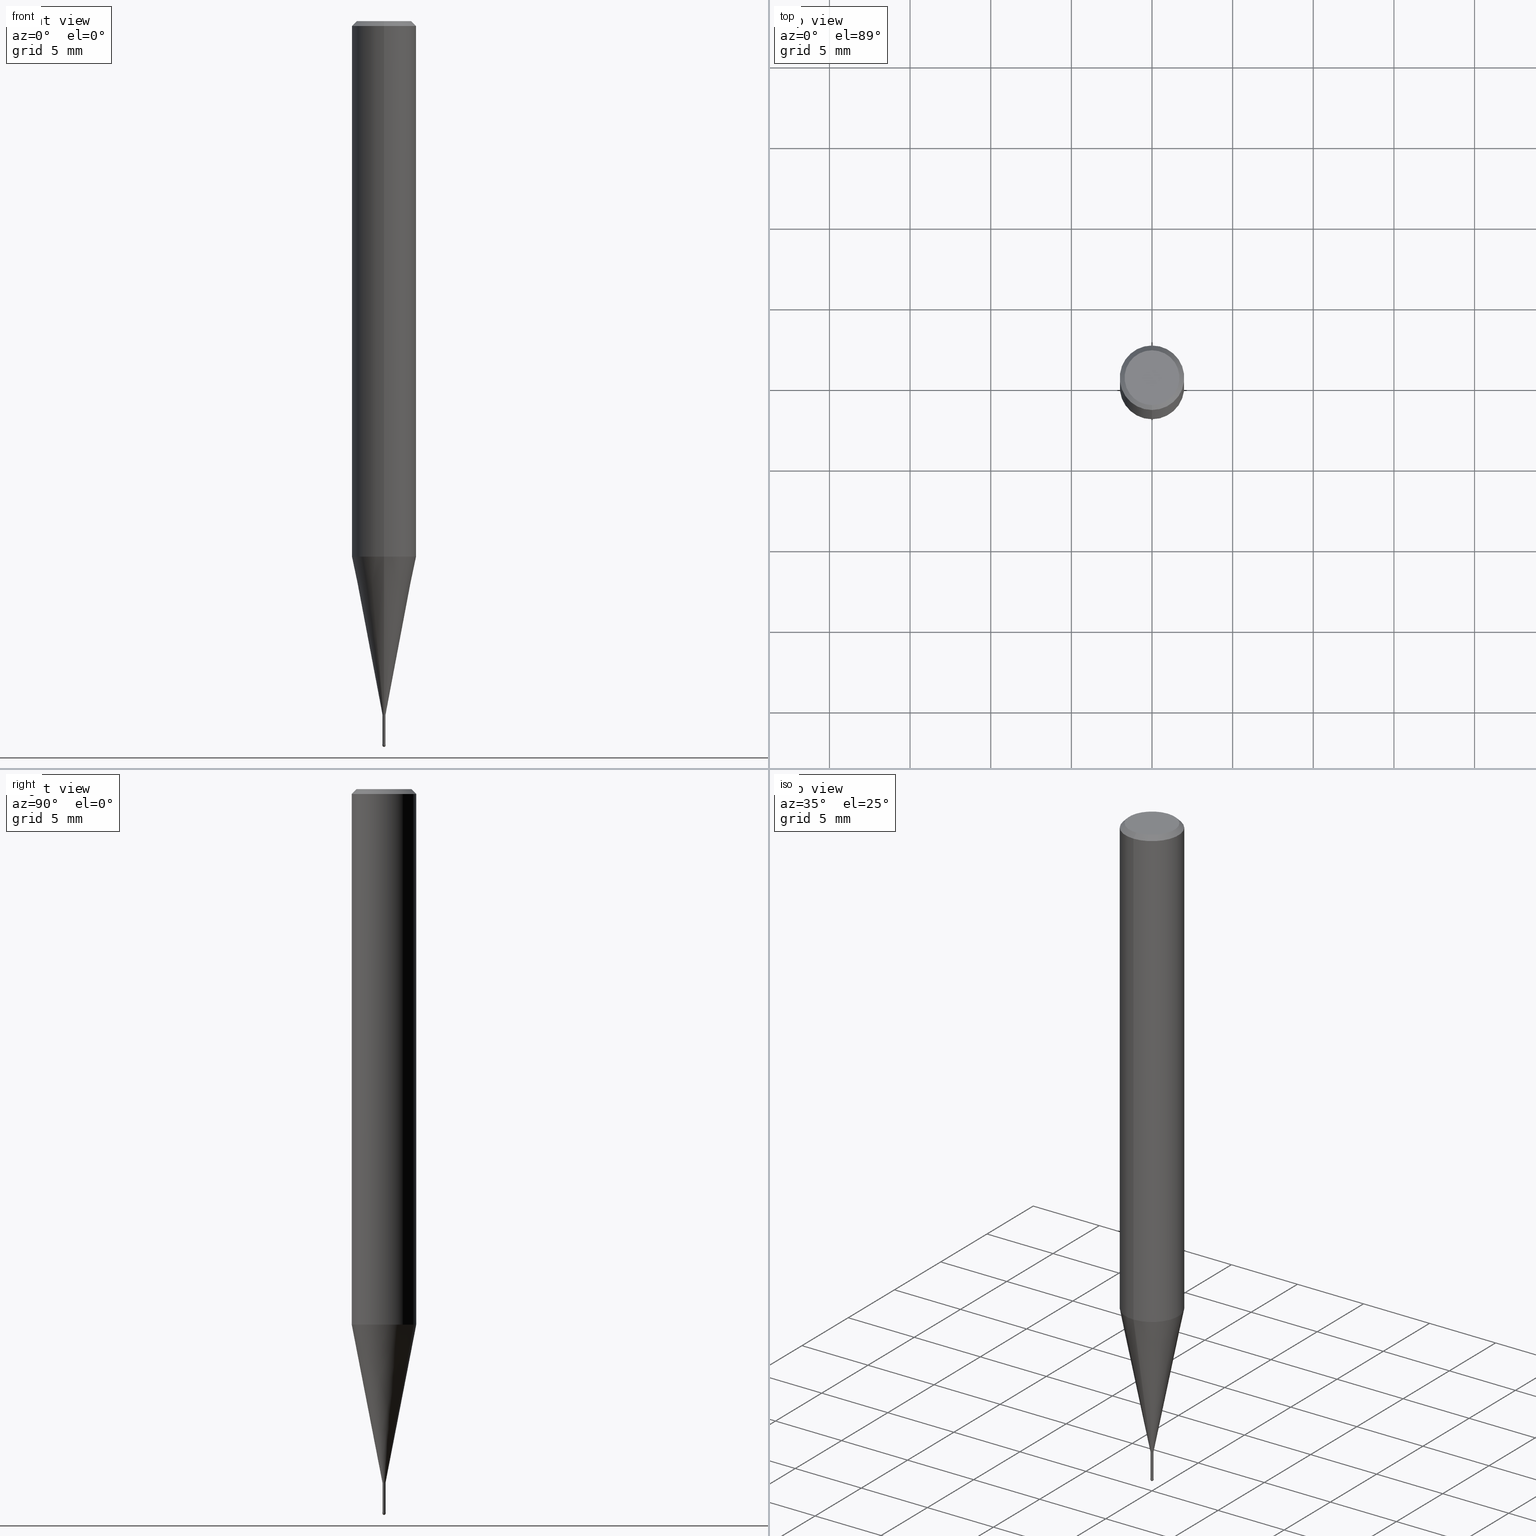
[diagram: canonical four-view strip — front | top / right | iso, engineering-drawing reading convention]
A machine part, canonical four-view strip (front | top / right | iso — engineering-drawing reading convention). The complete STEP part file that produces these views, byte-faithful:
ISO-10303-21;
HEADER;
FILE_DESCRIPTION(('no description'),'unknown implementation level');
FILE_NAME('CSELB2002-020-Huellk.stp','  ',('CIMSOURCE GmbH'),('CADClick - KiM GmbH - www.kimweb.de'),'unknown preprocess','ACIS','unknown authorization');
FILE_SCHEMA(('automotive_design'));
ENDSEC;
DATA;
#1=MECHANICAL_DESIGN_GEOMETRIC_PRESENTATION_REPRESENTATION(' ',(#14,#15,#16,#17,#18,#19,#20,#21,#22,#23,#24,#25,#26,#27,#28,#29,#30,#31,#32,#33,#34,#35,#36,#37,#38,#39,#40,#41,#42,#43,#44,#45,#46,#47,#48,#49,#50,#51,#52,#53,#54,#55,#56,#57,#58,#59,#60,#61,#62,#63,#64,#65,#66,#67,#68,#69,#70,#71,#72,#73,#74),#10);
#2=PRODUCT_DEFINITION_CONTEXT('',#75,'design');
#3=APPLICATION_PROTOCOL_DEFINITION('INTERNATIONAL STANDARD','automotive_design',1994,#75);
#4=PRODUCT_CATEGORY_RELATIONSHIP('NONE','NONE',#76,#77);
#5=SHAPE_DEFINITION_REPRESENTATION(#78,#79);
#6=PRODUCT_DEFINITION_CONTEXT('',#80,'design');
#7=APPLICATION_PROTOCOL_DEFINITION('INTERNATIONAL STANDARD','automotive_design',1994,#80);
#8=PRODUCT_CATEGORY_RELATIONSHIP('NONE','NONE',#81,#82);
#9=SHAPE_DEFINITION_REPRESENTATION(#83,#84);
#10= (GEOMETRIC_REPRESENTATION_CONTEXT(3)GLOBAL_UNCERTAINTY_ASSIGNED_CONTEXT((#87))GLOBAL_UNIT_ASSIGNED_CONTEXT((#89,#90,#91))REPRESENTATION_CONTEXT('NONE','WORKSPACE'));
#14=STYLED_ITEM('',(#93),#94);
#15=STYLED_ITEM('',(#95),#96);
#16=STYLED_ITEM('',(#97),#98);
#17=STYLED_ITEM('',(#99),#100);
#18=STYLED_ITEM('',(#101),#102);
#19=STYLED_ITEM('',(#103),#104);
#20=STYLED_ITEM('',(#105),#106);
#21=STYLED_ITEM('',(#107),#108);
#22=STYLED_ITEM('',(#109),#110);
#23=STYLED_ITEM('',(#111),#112);
#24=STYLED_ITEM('',(#113),#114);
#25=STYLED_ITEM('',(#115),#116);
#26=STYLED_ITEM('',(#117),#118);
#27=STYLED_ITEM('',(#119),#120);
#28=STYLED_ITEM('',(#121),#122);
#29=STYLED_ITEM('',(#123),#124);
#30=STYLED_ITEM('',(#125),#126);
#31=STYLED_ITEM('',(#127),#128);
#32=STYLED_ITEM('',(#129),#130);
#33=STYLED_ITEM('',(#131),#132);
#34=STYLED_ITEM('',(#133),#134);
#35=STYLED_ITEM('',(#135),#136);
#36=STYLED_ITEM('',(#137),#138);
#37=STYLED_ITEM('',(#139),#140);
#38=STYLED_ITEM('',(#141),#142);
#39=STYLED_ITEM('',(#143),#144);
#40=STYLED_ITEM('',(#145),#146);
#41=STYLED_ITEM('',(#147),#148);
#42=STYLED_ITEM('',(#149),#150);
#43=STYLED_ITEM('',(#151),#152);
#44=STYLED_ITEM('',(#153),#154);
#45=STYLED_ITEM('',(#155),#156);
#46=STYLED_ITEM('',(#157),#158);
#47=STYLED_ITEM('',(#159),#160);
#48=STYLED_ITEM('',(#161),#162);
#49=STYLED_ITEM('',(#163),#164);
#50=STYLED_ITEM('',(#165),#166);
#51=STYLED_ITEM('',(#167),#168);
#52=STYLED_ITEM('',(#169),#170);
#53=STYLED_ITEM('',(#171),#172);
#54=STYLED_ITEM('',(#173),#174);
#55=STYLED_ITEM('',(#175),#176);
#56=STYLED_ITEM('',(#177),#178);
#57=STYLED_ITEM('',(#179),#180);
#58=STYLED_ITEM('',(#181),#182);
#59=STYLED_ITEM('',(#183),#184);
#60=STYLED_ITEM('',(#185),#186);
#61=STYLED_ITEM('',(#187),#188);
#62=STYLED_ITEM('',(#189),#190);
#63=STYLED_ITEM('',(#191),#192);
#64=STYLED_ITEM('',(#193),#194);
#65=STYLED_ITEM('',(#195),#196);
#66=STYLED_ITEM('',(#197),#198);
#67=STYLED_ITEM('',(#199),#200);
#68=STYLED_ITEM('',(#201),#202);
#69=STYLED_ITEM('',(#203),#204);
#70=STYLED_ITEM('',(#205),#206);
#71=STYLED_ITEM('',(#207),#208);
#72=STYLED_ITEM('',(#209),#210);
#73=STYLED_ITEM('',(#211),#212);
#74=STYLED_ITEM('',(#213),#214);
#75=APPLICATION_CONTEXT(' ');
#76=PRODUCT_CATEGORY('part','NONE');
#77=PRODUCT_RELATED_PRODUCT_CATEGORY('detail',' ',(#215));
#78=PRODUCT_DEFINITION_SHAPE('NONE','NONE',#216);
#79=ADVANCED_BREP_SHAPE_REPRESENTATION('1',(#122,#217),#10);
#80=APPLICATION_CONTEXT(' ');
#81=PRODUCT_CATEGORY('part','NONE');
#82=PRODUCT_RELATED_PRODUCT_CATEGORY('detail',' ',(#218));
#83=PRODUCT_DEFINITION_SHAPE('NONE','NONE',#219);
#84=ADVANCED_BREP_SHAPE_REPRESENTATION('2',(#208,#220),#10);
#87=UNCERTAINTY_MEASURE_WITH_UNIT(LENGTH_MEASURE(1.0E-006),#89,'','');
#89= (CONVERSION_BASED_UNIT('MILLIMETRE',#223)LENGTH_UNIT()NAMED_UNIT(#226));
#90= (NAMED_UNIT(#228)PLANE_ANGLE_UNIT()SI_UNIT($,.RADIAN.));
#91= (NAMED_UNIT(#228)SOLID_ANGLE_UNIT()SI_UNIT($,.STERADIAN.));
#93=PRESENTATION_STYLE_ASSIGNMENT((#234));
#94=EDGE_CURVE('',#164,#120,#235,.T.);
#95=PRESENTATION_STYLE_ASSIGNMENT((#236));
#96=EDGE_CURVE('',#184,#170,#237,.T.);
#97=PRESENTATION_STYLE_ASSIGNMENT((#238));
#98=ADVANCED_FACE('',(#239),#240,.T.);
#99=PRESENTATION_STYLE_ASSIGNMENT((#241));
#100=ADVANCED_FACE('',(#242),#243,.T.);
#101=PRESENTATION_STYLE_ASSIGNMENT((#244));
#102=ADVANCED_FACE('',(#245),#246,.T.);
#103=PRESENTATION_STYLE_ASSIGNMENT((#247));
#104=ADVANCED_FACE('',(#248),#249,.T.);
#105=PRESENTATION_STYLE_ASSIGNMENT((#250));
#106=ADVANCED_FACE('',(#251),#252,.T.);
#107=PRESENTATION_STYLE_ASSIGNMENT((#253));
#108=EDGE_CURVE('',#212,#204,#254,.T.);
#109=PRESENTATION_STYLE_ASSIGNMENT((#255));
#110=EDGE_CURVE('',#204,#212,#256,.T.);
#111=PRESENTATION_STYLE_ASSIGNMENT((#257));
#112=VERTEX_POINT('',#258);
#113=PRESENTATION_STYLE_ASSIGNMENT((#259));
#114=EDGE_CURVE('',#112,#184,#260,.T.);
#115=PRESENTATION_STYLE_ASSIGNMENT((#261));
#116=EDGE_CURVE('',#150,#112,#262,.T.);
#117=PRESENTATION_STYLE_ASSIGNMENT((#263));
#118=EDGE_CURVE('',#200,#168,#264,.T.);
#119=PRESENTATION_STYLE_ASSIGNMENT((#265));
#120=VERTEX_POINT('',#266);
#121=PRESENTATION_STYLE_ASSIGNMENT((#267));
#122=MANIFOLD_SOLID_BREP('1',#268);
#123=PRESENTATION_STYLE_ASSIGNMENT((#269));
#124=VERTEX_POINT('',#270);
#125=PRESENTATION_STYLE_ASSIGNMENT((#271));
#126=EDGE_CURVE('',#212,#120,#272,.T.);
#127=PRESENTATION_STYLE_ASSIGNMENT((#273));
#128=EDGE_CURVE('',#170,#150,#274,.T.);
#129=PRESENTATION_STYLE_ASSIGNMENT((#275));
#130=EDGE_CURVE('',#142,#124,#276,.T.);
#131=PRESENTATION_STYLE_ASSIGNMENT((#277));
#132=EDGE_CURVE('',#184,#124,#278,.T.);
#133=PRESENTATION_STYLE_ASSIGNMENT((#279));
#134=VERTEX_POINT('',#280);
#135=PRESENTATION_STYLE_ASSIGNMENT((#281));
#136=EDGE_CURVE('',#168,#206,#282,.T.);
#137=PRESENTATION_STYLE_ASSIGNMENT((#283));
#138=ADVANCED_FACE('',(#284),#285,.T.);
#139=PRESENTATION_STYLE_ASSIGNMENT((#286));
#140=EDGE_CURVE('',#178,#190,#287,.T.);
#141=PRESENTATION_STYLE_ASSIGNMENT((#288));
#142=VERTEX_POINT('',#289);
#143=PRESENTATION_STYLE_ASSIGNMENT((#290));
#144=ADVANCED_FACE('',(#291),#292,.T.);
#145=PRESENTATION_STYLE_ASSIGNMENT((#293));
#146=ADVANCED_FACE('',(#294,#295),#296,.T.);
#147=PRESENTATION_STYLE_ASSIGNMENT((#297));
#148=EDGE_CURVE('',#134,#200,#298,.T.);
#149=PRESENTATION_STYLE_ASSIGNMENT((#299));
#150=VERTEX_POINT('',#300);
#151=PRESENTATION_STYLE_ASSIGNMENT((#301));
#152=EDGE_CURVE('',#124,#142,#302,.T.);
#153=PRESENTATION_STYLE_ASSIGNMENT((#303));
#154=ADVANCED_FACE('',(#304),#305,.T.);
#155=PRESENTATION_STYLE_ASSIGNMENT((#306));
#156=ADVANCED_FACE('',(#307),#308,.T.);
#157=PRESENTATION_STYLE_ASSIGNMENT((#309));
#158=EDGE_CURVE('',#164,#204,#310,.T.);
#159=PRESENTATION_STYLE_ASSIGNMENT((#311));
#160=EDGE_CURVE('',#190,#206,#312,.T.);
#161=PRESENTATION_STYLE_ASSIGNMENT((#313));
#162=ADVANCED_FACE('',(#314),#315,.T.);
#163=PRESENTATION_STYLE_ASSIGNMENT((#316));
#164=VERTEX_POINT('',#317);
#165=PRESENTATION_STYLE_ASSIGNMENT((#318));
#166=EDGE_CURVE('',#142,#170,#319,.T.);
#167=PRESENTATION_STYLE_ASSIGNMENT((#320));
#168=VERTEX_POINT('',#321);
#169=PRESENTATION_STYLE_ASSIGNMENT((#322));
#170=VERTEX_POINT('',#323);
#171=PRESENTATION_STYLE_ASSIGNMENT((#324));
#172=EDGE_CURVE('',#120,#164,#325,.T.);
#173=PRESENTATION_STYLE_ASSIGNMENT((#326));
#174=ADVANCED_FACE('',(#327),#328,.T.);
#175=PRESENTATION_STYLE_ASSIGNMENT((#329));
#176=EDGE_CURVE('',#206,#134,#330,.T.);
#177=PRESENTATION_STYLE_ASSIGNMENT((#331));
#178=VERTEX_POINT('',#332);
#179=PRESENTATION_STYLE_ASSIGNMENT((#333));
#180=EDGE_CURVE('',#190,#178,#334,.T.);
#181=PRESENTATION_STYLE_ASSIGNMENT((#335));
#182=EDGE_CURVE('',#206,#168,#336,.T.);
#183=PRESENTATION_STYLE_ASSIGNMENT((#337));
#184=VERTEX_POINT('',#338);
#185=PRESENTATION_STYLE_ASSIGNMENT((#339));
#186=EDGE_CURVE('',#170,#184,#340,.T.);
#187=PRESENTATION_STYLE_ASSIGNMENT((#341));
#188=ADVANCED_FACE('',(#342),#343,.T.);
#189=PRESENTATION_STYLE_ASSIGNMENT((#344));
#190=VERTEX_POINT('',#345);
#191=PRESENTATION_STYLE_ASSIGNMENT((#346));
#192=EDGE_CURVE('',#168,#178,#347,.T.);
#193=PRESENTATION_STYLE_ASSIGNMENT((#348));
#194=ADVANCED_FACE('',(#349),#350,.T.);
#195=PRESENTATION_STYLE_ASSIGNMENT((#351));
#196=EDGE_CURVE('',#200,#134,#352,.T.);
#197=PRESENTATION_STYLE_ASSIGNMENT((#353));
#198=ADVANCED_FACE('',(#354),#355,.T.);
#199=PRESENTATION_STYLE_ASSIGNMENT((#356));
#200=VERTEX_POINT('',#357);
#201=PRESENTATION_STYLE_ASSIGNMENT((#358));
#202=EDGE_CURVE('',#164,#120,#359,.T.);
#203=PRESENTATION_STYLE_ASSIGNMENT((#360));
#204=VERTEX_POINT('',#361);
#205=PRESENTATION_STYLE_ASSIGNMENT((#362));
#206=VERTEX_POINT('',#363);
#207=PRESENTATION_STYLE_ASSIGNMENT((#364));
#208=MANIFOLD_SOLID_BREP('2',#365);
#209=PRESENTATION_STYLE_ASSIGNMENT((#366));
#210=ADVANCED_FACE('',(#367),#368,.T.);
#211=PRESENTATION_STYLE_ASSIGNMENT((#369));
#212=VERTEX_POINT('',#370);
#213=PRESENTATION_STYLE_ASSIGNMENT((#371));
#214=EDGE_CURVE('',#112,#150,#372,.T.);
#215=PRODUCT('1','1','PART-1-DESC',(#373));
#216=PRODUCT_DEFINITION('NONE','NONE',#374,#2);
#217=AXIS2_PLACEMENT_3D('',#375,#376,#377);
#218=PRODUCT('2','2','PART-2-DESC',(#378));
#219=PRODUCT_DEFINITION('NONE','NONE',#379,#6);
#220=AXIS2_PLACEMENT_3D('',#380,#381,#382);
#223=LENGTH_MEASURE_WITH_UNIT(LENGTH_MEASURE(1.0),#383);
#226=DIMENSIONAL_EXPONENTS(1.0,0.0,0.0,0.0,0.0,0.0,0.0);
#228=DIMENSIONAL_EXPONENTS(0.0,0.0,0.0,0.0,0.0,0.0,0.0);
#234=CURVE_STYLE('',#384,POSITIVE_LENGTH_MEASURE(1.0E-006),#385);
#235=CIRCLE('',#386,0.1);
#236=CURVE_STYLE('',#387,POSITIVE_LENGTH_MEASURE(1.0E-006),#388);
#237=CIRCLE('',#389,2.0);
#238=SURFACE_STYLE_USAGE(.BOTH.,#390);
#239=FACE_OUTER_BOUND('',#391,.T.);
#240=PLANE('',#392);
#241=SURFACE_STYLE_USAGE(.BOTH.,#393);
#242=FACE_OUTER_BOUND('',#394,.T.);
#243=SPHERICAL_SURFACE('',#395,0.1);
#244=SURFACE_STYLE_USAGE(.BOTH.,#396);
#245=FACE_OUTER_BOUND('',#397,.T.);
#246=CYLINDRICAL_SURFACE('',#398,0.09495);
#247=SURFACE_STYLE_USAGE(.BOTH.,#399);
#248=FACE_OUTER_BOUND('',#400,.T.);
#249=CONICAL_SURFACE('',#401,1.04745,0.191993392580482);
#250=SURFACE_STYLE_USAGE(.BOTH.,#402);
#251=FACE_OUTER_BOUND('',#403,.T.);
#252=CONICAL_SURFACE('',#404,0.09995,0.00166666512345941);
#253=CURVE_STYLE('',#405,POSITIVE_LENGTH_MEASURE(1.0E-006),#406);
#254=CIRCLE('',#407,0.0999);
#255=CURVE_STYLE('',#408,POSITIVE_LENGTH_MEASURE(1.0E-006),#409);
#256=CIRCLE('',#410,0.0999);
#257=POINT_STYLE(' ',#411,POSITIVE_LENGTH_MEASURE(1.0E-006),#412);
#258=CARTESIAN_POINT('',(2.44921270764475E-016,-2.0,-33.2));
#259=CURVE_STYLE('',#413,POSITIVE_LENGTH_MEASURE(1.0E-006),#414);
#260=LINE('',#415,#416);
#261=CURVE_STYLE('',#417,POSITIVE_LENGTH_MEASURE(1.0E-006),#418);
#262=CIRCLE('',#419,2.0);
#263=CURVE_STYLE('',#420,POSITIVE_LENGTH_MEASURE(1.0E-006),#421);
#264=LINE('',#422,#423);
#265=POINT_STYLE(' ',#424,POSITIVE_LENGTH_MEASURE(1.0E-006),#425);
#266=CARTESIAN_POINT('',(0.0,0.1,-44.9));
#267=SURFACE_STYLE_USAGE(.BOTH.,#426);
#268=CLOSED_SHELL('',(#102,#104,#210,#174,#146,#194,#188,#144,#162,#154,#98));
#269=POINT_STYLE(' ',#427,POSITIVE_LENGTH_MEASURE(1.0E-006),#428);
#270=CARTESIAN_POINT('',(2.08183080149804E-016,-1.7,0.0));
#271=CURVE_STYLE('',#429,POSITIVE_LENGTH_MEASURE(1.0E-006),#430);
#272=LINE('',#431,#432);
#273=CURVE_STYLE('',#433,POSITIVE_LENGTH_MEASURE(1.0E-006),#434);
#274=LINE('',#435,#436);
#275=CURVE_STYLE('',#437,POSITIVE_LENGTH_MEASURE(1.0E-006),#438);
#276=CIRCLE('',#439,1.7);
#277=CURVE_STYLE('',#440,POSITIVE_LENGTH_MEASURE(1.0E-006),#441);
#278=LINE('',#442,#443);
#279=POINT_STYLE(' ',#444,POSITIVE_LENGTH_MEASURE(1.0E-006),#445);
#280=CARTESIAN_POINT('',(0.0,0.09495,-44.84));
#281=CURVE_STYLE('',#446,POSITIVE_LENGTH_MEASURE(1.0E-006),#447);
#282=CIRCLE('',#448,0.09495);
#283=SURFACE_STYLE_USAGE(.BOTH.,#449);
#284=FACE_OUTER_BOUND('',#450,.T.);
#285=CONICAL_SURFACE('',#451,0.09995,0.00166666512345941);
#286=CURVE_STYLE('',#452,POSITIVE_LENGTH_MEASURE(1.0E-006),#453);
#287=CIRCLE('',#454,1.99995);
#288=POINT_STYLE(' ',#455,POSITIVE_LENGTH_MEASURE(1.0E-006),#456);
#289=CARTESIAN_POINT('',(0.0,1.7,0.0));
#290=SURFACE_STYLE_USAGE(.BOTH.,#457);
#291=FACE_OUTER_BOUND('',#458,.T.);
#292=CYLINDRICAL_SURFACE('',#459,2.0);
#293=SURFACE_STYLE_USAGE(.BOTH.,#460);
#294=FACE_OUTER_BOUND('',#461,.T.);
#295=FACE_BOUND('',#462,.T.);
#296=PLANE('',#463);
#297=CURVE_STYLE('',#464,POSITIVE_LENGTH_MEASURE(1.0E-006),#465);
#298=CIRCLE('',#466,0.09495);
#299=POINT_STYLE(' ',#467,POSITIVE_LENGTH_MEASURE(1.0E-006),#468);
#300=CARTESIAN_POINT('',(0.0,2.0,-33.2));
#301=CURVE_STYLE('',#469,POSITIVE_LENGTH_MEASURE(1.0E-006),#470);
#302=CIRCLE('',#471,1.7);
#303=SURFACE_STYLE_USAGE(.BOTH.,#472);
#304=FACE_OUTER_BOUND('',#473,.T.);
#305=CYLINDRICAL_SURFACE('',#474,0.09495);
#306=SURFACE_STYLE_USAGE(.BOTH.,#475);
#307=FACE_OUTER_BOUND('',#476,.T.);
#308=SPHERICAL_SURFACE('',#477,0.1);
#309=CURVE_STYLE('',#478,POSITIVE_LENGTH_MEASURE(1.0E-006),#479);
#310=LINE('',#480,#481);
#311=CURVE_STYLE('',#482,POSITIVE_LENGTH_MEASURE(1.0E-006),#483);
#312=LINE('',#484,#485);
#313=SURFACE_STYLE_USAGE(.BOTH.,#486);
#314=FACE_OUTER_BOUND('',#487,.T.);
#315=CONICAL_SURFACE('',#488,1.04745,0.191993392580482);
#316=POINT_STYLE(' ',#489,POSITIVE_LENGTH_MEASURE(1.0E-006),#490);
#317=CARTESIAN_POINT('',(1.22460635382238E-017,-0.1,-44.9));
#318=CURVE_STYLE('',#491,POSITIVE_LENGTH_MEASURE(1.0E-006),#492);
#319=LINE('',#493,#494);
#320=POINT_STYLE(' ',#495,POSITIVE_LENGTH_MEASURE(1.0E-006),#496);
#321=CARTESIAN_POINT('',(1.16276373295435E-017,-0.09495,-43.0));
#322=POINT_STYLE(' ',#497,POSITIVE_LENGTH_MEASURE(1.0E-006),#498);
#323=CARTESIAN_POINT('',(0.0,2.0,-0.299999999999997));
#324=CURVE_STYLE('',#499,POSITIVE_LENGTH_MEASURE(1.0E-006),#500);
#325=CIRCLE('',#501,0.1);
#326=SURFACE_STYLE_USAGE(.BOTH.,#502);
#327=FACE_OUTER_BOUND('',#503,.T.);
#328=CONICAL_SURFACE('',#504,1.85,0.785398163397453);
#329=CURVE_STYLE('',#505,POSITIVE_LENGTH_MEASURE(1.0E-006),#506);
#330=LINE('',#507,#508);
#331=POINT_STYLE(' ',#509,POSITIVE_LENGTH_MEASURE(1.0E-006),#510);
#332=CARTESIAN_POINT('',(2.44915147732706E-016,-1.99995,-33.2));
#333=CURVE_STYLE('',#511,POSITIVE_LENGTH_MEASURE(1.0E-006),#512);
#334=CIRCLE('',#513,1.99995);
#335=CURVE_STYLE('',#514,POSITIVE_LENGTH_MEASURE(1.0E-006),#515);
#336=CIRCLE('',#516,0.09495);
#337=POINT_STYLE(' ',#517,POSITIVE_LENGTH_MEASURE(1.0E-006),#518);
#338=CARTESIAN_POINT('',(2.44921270764475E-016,-2.0,-0.299999999999997));
#339=CURVE_STYLE('',#519,POSITIVE_LENGTH_MEASURE(1.0E-006),#520);
#340=CIRCLE('',#521,2.0);
#341=SURFACE_STYLE_USAGE(.BOTH.,#522);
#342=FACE_OUTER_BOUND('',#523,.T.);
#343=CONICAL_SURFACE('',#524,1.85,0.785398163397453);
#344=POINT_STYLE(' ',#525,POSITIVE_LENGTH_MEASURE(1.0E-006),#526);
#345=CARTESIAN_POINT('',(0.0,1.99995,-33.2));
#346=CURVE_STYLE('',#527,POSITIVE_LENGTH_MEASURE(1.0E-006),#528);
#347=LINE('',#529,#530);
#348=SURFACE_STYLE_USAGE(.BOTH.,#531);
#349=FACE_OUTER_BOUND('',#532,.T.);
#350=PLANE('',#533);
#351=CURVE_STYLE('',#534,POSITIVE_LENGTH_MEASURE(1.0E-006),#535);
#352=CIRCLE('',#536,0.09495);
#353=SURFACE_STYLE_USAGE(.BOTH.,#537);
#354=FACE_OUTER_BOUND('',#538,.T.);
#355=PLANE('',#539);
#356=POINT_STYLE(' ',#540,POSITIVE_LENGTH_MEASURE(1.0E-006),#541);
#357=CARTESIAN_POINT('',(1.16276373295435E-017,-0.09495,-44.84));
#358=CURVE_STYLE('',#542,POSITIVE_LENGTH_MEASURE(1.0E-006),#543);
#359=CIRCLE('',#544,0.1);
#360=POINT_STYLE(' ',#545,POSITIVE_LENGTH_MEASURE(1.0E-006),#546);
#361=CARTESIAN_POINT('',(1.22338174746855E-017,-0.0999,-44.84));
#362=POINT_STYLE(' ',#547,POSITIVE_LENGTH_MEASURE(1.0E-006),#548);
#363=CARTESIAN_POINT('',(0.0,0.09495,-43.0));
#364=SURFACE_STYLE_USAGE(.BOTH.,#549);
#365=CLOSED_SHELL('',(#156,#138,#198,#106,#100));
#366=SURFACE_STYLE_USAGE(.BOTH.,#550);
#367=FACE_OUTER_BOUND('',#551,.T.);
#368=CYLINDRICAL_SURFACE('',#552,2.0);
#369=POINT_STYLE(' ',#553,POSITIVE_LENGTH_MEASURE(1.0E-006),#554);
#370=CARTESIAN_POINT('',(0.0,0.0999,-44.84));
#371=CURVE_STYLE('',#555,POSITIVE_LENGTH_MEASURE(1.0E-006),#556);
#372=CIRCLE('',#557,2.0);
#373=PRODUCT_CONTEXT('',#75,'mechanical');
#374=PRODUCT_DEFINITION_FORMATION_WITH_SPECIFIED_SOURCE(' ','NONE',#215,.NOT_KNOWN.);
#375=CARTESIAN_POINT('',(0.0,0.0,0.0));
#376=DIRECTION('',(0.0,0.0,1.0));
#377=DIRECTION('',(1.0,0.0,0.0));
#378=PRODUCT_CONTEXT('',#80,'mechanical');
#379=PRODUCT_DEFINITION_FORMATION_WITH_SPECIFIED_SOURCE(' ','NONE',#218,.NOT_KNOWN.);
#380=CARTESIAN_POINT('',(0.0,0.0,0.0));
#381=DIRECTION('',(0.0,0.0,1.0));
#382=DIRECTION('',(1.0,0.0,0.0));
#383= (NAMED_UNIT(#226)LENGTH_UNIT()SI_UNIT(.MILLI.,.METRE.));
#384=DRAUGHTING_PRE_DEFINED_CURVE_FONT('continuous');
#385=COLOUR_RGB('',0.800000011920929,0.800000011920929,0.800000011920929);
#386=AXIS2_PLACEMENT_3D('',#559,#560,#561);
#387=DRAUGHTING_PRE_DEFINED_CURVE_FONT('continuous');
#388=COLOUR_RGB('',0.498039215803146,0.498039215803146,0.498039215803146);
#389=AXIS2_PLACEMENT_3D('',#562,#563,#564);
#390=SURFACE_SIDE_STYLE('',(#565));
#391=EDGE_LOOP('',(#566,#567));
#392=AXIS2_PLACEMENT_3D('',#568,#569,#570);
#393=SURFACE_SIDE_STYLE('',(#571));
#394=EDGE_LOOP('',(#572,#573));
#395=AXIS2_PLACEMENT_3D('',#574,#575,#576);
#396=SURFACE_SIDE_STYLE('',(#577));
#397=EDGE_LOOP('',(#578,#579,#580,#581));
#398=AXIS2_PLACEMENT_3D('',#582,#583,#584);
#399=SURFACE_SIDE_STYLE('',(#585));
#400=EDGE_LOOP('',(#586,#587,#588,#589));
#401=AXIS2_PLACEMENT_3D('',#590,#591,#592);
#402=SURFACE_SIDE_STYLE('',(#593));
#403=EDGE_LOOP('',(#594,#595,#596,#597));
#404=AXIS2_PLACEMENT_3D('',#598,#599,#600);
#405=DRAUGHTING_PRE_DEFINED_CURVE_FONT('continuous');
#406=COLOUR_RGB('',0.800000011920929,0.800000011920929,0.800000011920929);
#407=AXIS2_PLACEMENT_3D('',#601,#602,#603);
#408=DRAUGHTING_PRE_DEFINED_CURVE_FONT('continuous');
#409=COLOUR_RGB('',0.800000011920929,0.800000011920929,0.800000011920929);
#410=AXIS2_PLACEMENT_3D('',#604,#605,#606);
#411=PRE_DEFINED_MARKER('');
#412=COLOUR_RGB('',0.498039215803146,0.498039215803146,0.498039215803146);
#413=DRAUGHTING_PRE_DEFINED_CURVE_FONT('continuous');
#414=COLOUR_RGB('',0.498039215803146,0.498039215803146,0.498039215803146);
#415=CARTESIAN_POINT('',(2.44921270764475E-016,-2.0,-16.75));
#416=VECTOR('',#607,1.0);
#417=DRAUGHTING_PRE_DEFINED_CURVE_FONT('continuous');
#418=COLOUR_RGB('',0.498039215803146,0.498039215803146,0.498039215803146);
#419=AXIS2_PLACEMENT_3D('',#608,#609,#610);
#420=DRAUGHTING_PRE_DEFINED_CURVE_FONT('continuous');
#421=COLOUR_RGB('',0.498039215803146,0.498039215803146,0.498039215803146);
#422=CARTESIAN_POINT('',(1.16276373295435E-017,-0.09495,-43.92));
#423=VECTOR('',#611,1.0);
#424=PRE_DEFINED_MARKER('');
#425=COLOUR_RGB('',0.800000011920929,0.800000011920929,0.800000011920929);
#426=SURFACE_SIDE_STYLE('',(#612));
#427=PRE_DEFINED_MARKER('');
#428=COLOUR_RGB('',0.498039215803146,0.498039215803146,0.498039215803146);
#429=DRAUGHTING_PRE_DEFINED_CURVE_FONT('continuous');
#430=COLOUR_RGB('',0.800000011920929,0.800000011920929,0.800000011920929);
#431=CARTESIAN_POINT('',(-1.22399405064547E-017,0.09995,-44.87));
#432=VECTOR('',#613,1.0);
#433=DRAUGHTING_PRE_DEFINED_CURVE_FONT('continuous');
#434=COLOUR_RGB('',0.498039215803146,0.498039215803146,0.498039215803146);
#435=CARTESIAN_POINT('',(-2.44921270764475E-016,2.0,-16.75));
#436=VECTOR('',#614,1.0);
#437=DRAUGHTING_PRE_DEFINED_CURVE_FONT('continuous');
#438=COLOUR_RGB('',0.498039215803146,0.498039215803146,0.498039215803146);
#439=AXIS2_PLACEMENT_3D('',#615,#616,#617);
#440=DRAUGHTING_PRE_DEFINED_CURVE_FONT('continuous');
#441=COLOUR_RGB('',0.498039215803146,0.498039215803146,0.498039215803146);
#442=CARTESIAN_POINT('',(2.2655217545714E-016,-1.85,-0.149999999999999));
#443=VECTOR('',#618,1.0);
#444=PRE_DEFINED_MARKER('');
#445=COLOUR_RGB('',0.498039215803146,0.498039215803146,0.498039215803146);
#446=DRAUGHTING_PRE_DEFINED_CURVE_FONT('continuous');
#447=COLOUR_RGB('',0.498039215803146,0.498039215803146,0.498039215803146);
#448=AXIS2_PLACEMENT_3D('',#619,#620,#621);
#449=SURFACE_SIDE_STYLE('',(#622));
#450=EDGE_LOOP('',(#623,#624,#625,#626));
#451=AXIS2_PLACEMENT_3D('',#627,#628,#629);
#452=DRAUGHTING_PRE_DEFINED_CURVE_FONT('continuous');
#453=COLOUR_RGB('',0.498039215803146,0.498039215803146,0.498039215803146);
#454=AXIS2_PLACEMENT_3D('',#630,#631,#632);
#455=PRE_DEFINED_MARKER('');
#456=COLOUR_RGB('',0.498039215803146,0.498039215803146,0.498039215803146);
#457=SURFACE_SIDE_STYLE('',(#633));
#458=EDGE_LOOP('',(#634,#635,#636,#637));
#459=AXIS2_PLACEMENT_3D('',#638,#639,#640);
#460=SURFACE_SIDE_STYLE('',(#641));
#461=EDGE_LOOP('',(#642,#643));
#462=EDGE_LOOP('',(#644,#645));
#463=AXIS2_PLACEMENT_3D('',#646,#647,#648);
#464=DRAUGHTING_PRE_DEFINED_CURVE_FONT('continuous');
#465=COLOUR_RGB('',0.498039215803146,0.498039215803146,0.498039215803146);
#466=AXIS2_PLACEMENT_3D('',#649,#650,#651);
#467=PRE_DEFINED_MARKER('');
#468=COLOUR_RGB('',0.498039215803146,0.498039215803146,0.498039215803146);
#469=DRAUGHTING_PRE_DEFINED_CURVE_FONT('continuous');
#470=COLOUR_RGB('',0.498039215803146,0.498039215803146,0.498039215803146);
#471=AXIS2_PLACEMENT_3D('',#652,#653,#654);
#472=SURFACE_SIDE_STYLE('',(#655));
#473=EDGE_LOOP('',(#656,#657,#658,#659));
#474=AXIS2_PLACEMENT_3D('',#660,#661,#662);
#475=SURFACE_SIDE_STYLE('',(#663));
#476=EDGE_LOOP('',(#664,#665));
#477=AXIS2_PLACEMENT_3D('',#666,#667,#668);
#478=DRAUGHTING_PRE_DEFINED_CURVE_FONT('continuous');
#479=COLOUR_RGB('',0.800000011920929,0.800000011920929,0.800000011920929);
#480=CARTESIAN_POINT('',(1.22399405064547E-017,-0.09995,-44.87));
#481=VECTOR('',#669,1.0);
#482=DRAUGHTING_PRE_DEFINED_CURVE_FONT('continuous');
#483=COLOUR_RGB('',0.498039215803146,0.498039215803146,0.498039215803146);
#484=CARTESIAN_POINT('',(-1.28271392531125E-016,1.04745,-38.1));
#485=VECTOR('',#670,1.0);
#486=SURFACE_SIDE_STYLE('',(#671));
#487=EDGE_LOOP('',(#672,#673,#674,#675));
#488=AXIS2_PLACEMENT_3D('',#676,#677,#678);
#489=PRE_DEFINED_MARKER('');
#490=COLOUR_RGB('',0.800000011920929,0.800000011920929,0.800000011920929);
#491=DRAUGHTING_PRE_DEFINED_CURVE_FONT('continuous');
#492=COLOUR_RGB('',0.498039215803146,0.498039215803146,0.498039215803146);
#493=CARTESIAN_POINT('',(-2.2655217545714E-016,1.85,-0.149999999999999));
#494=VECTOR('',#679,1.0);
#495=PRE_DEFINED_MARKER('');
#496=COLOUR_RGB('',0.498039215803146,0.498039215803146,0.498039215803146);
#497=PRE_DEFINED_MARKER('');
#498=COLOUR_RGB('',0.498039215803146,0.498039215803146,0.498039215803146);
#499=DRAUGHTING_PRE_DEFINED_CURVE_FONT('continuous');
#500=COLOUR_RGB('',0.800000011920929,0.800000011920929,0.800000011920929);
#501=AXIS2_PLACEMENT_3D('',#680,#681,#682);
#502=SURFACE_SIDE_STYLE('',(#683));
#503=EDGE_LOOP('',(#684,#685,#686,#687));
#504=AXIS2_PLACEMENT_3D('',#688,#689,#690);
#505=DRAUGHTING_PRE_DEFINED_CURVE_FONT('continuous');
#506=COLOUR_RGB('',0.498039215803146,0.498039215803146,0.498039215803146);
#507=CARTESIAN_POINT('',(-1.16276373295435E-017,0.09495,-43.92));
#508=VECTOR('',#691,1.0);
#509=PRE_DEFINED_MARKER('');
#510=COLOUR_RGB('',0.498039215803146,0.498039215803146,0.498039215803146);
#511=DRAUGHTING_PRE_DEFINED_CURVE_FONT('continuous');
#512=COLOUR_RGB('',0.498039215803146,0.498039215803146,0.498039215803146);
#513=AXIS2_PLACEMENT_3D('',#692,#693,#694);
#514=DRAUGHTING_PRE_DEFINED_CURVE_FONT('continuous');
#515=COLOUR_RGB('',0.498039215803146,0.498039215803146,0.498039215803146);
#516=AXIS2_PLACEMENT_3D('',#695,#696,#697);
#517=PRE_DEFINED_MARKER('');
#518=COLOUR_RGB('',0.498039215803146,0.498039215803146,0.498039215803146);
#519=DRAUGHTING_PRE_DEFINED_CURVE_FONT('continuous');
#520=COLOUR_RGB('',0.498039215803146,0.498039215803146,0.498039215803146);
#521=AXIS2_PLACEMENT_3D('',#698,#699,#700);
#522=SURFACE_SIDE_STYLE('',(#701));
#523=EDGE_LOOP('',(#702,#703,#704,#705));
#524=AXIS2_PLACEMENT_3D('',#706,#707,#708);
#525=PRE_DEFINED_MARKER('');
#526=COLOUR_RGB('',0.498039215803146,0.498039215803146,0.498039215803146);
#527=DRAUGHTING_PRE_DEFINED_CURVE_FONT('continuous');
#528=COLOUR_RGB('',0.498039215803146,0.498039215803146,0.498039215803146);
#529=CARTESIAN_POINT('',(1.28271392531125E-016,-1.04745,-38.1));
#530=VECTOR('',#709,1.0);
#531=SURFACE_SIDE_STYLE('',(#710));
#532=EDGE_LOOP('',(#711,#712));
#533=AXIS2_PLACEMENT_3D('',#713,#714,#715);
#534=DRAUGHTING_PRE_DEFINED_CURVE_FONT('continuous');
#535=COLOUR_RGB('',0.498039215803146,0.498039215803146,0.498039215803146);
#536=AXIS2_PLACEMENT_3D('',#716,#717,#718);
#537=SURFACE_SIDE_STYLE('',(#719));
#538=EDGE_LOOP('',(#720,#721));
#539=AXIS2_PLACEMENT_3D('',#722,#723,#724);
#540=PRE_DEFINED_MARKER('');
#541=COLOUR_RGB('',0.498039215803146,0.498039215803146,0.498039215803146);
#542=DRAUGHTING_PRE_DEFINED_CURVE_FONT('continuous');
#543=COLOUR_RGB('',0.800000011920929,0.800000011920929,0.800000011920929);
#544=AXIS2_PLACEMENT_3D('',#725,#726,#727);
#545=PRE_DEFINED_MARKER('');
#546=COLOUR_RGB('',0.800000011920929,0.800000011920929,0.800000011920929);
#547=PRE_DEFINED_MARKER('');
#548=COLOUR_RGB('',0.498039215803146,0.498039215803146,0.498039215803146);
#549=SURFACE_SIDE_STYLE('',(#728));
#550=SURFACE_SIDE_STYLE('',(#729));
#551=EDGE_LOOP('',(#730,#731,#732,#733));
#552=AXIS2_PLACEMENT_3D('',#734,#735,#736);
#553=PRE_DEFINED_MARKER('');
#554=COLOUR_RGB('',0.800000011920929,0.800000011920929,0.800000011920929);
#555=DRAUGHTING_PRE_DEFINED_CURVE_FONT('continuous');
#556=COLOUR_RGB('',0.498039215803146,0.498039215803146,0.498039215803146);
#557=AXIS2_PLACEMENT_3D('',#737,#738,#739);
#559=CARTESIAN_POINT('',(0.0,0.0,-44.9));
#560=DIRECTION('',(1.0,0.0,1.22460635382236E-016));
#561=DIRECTION('',(-1.22460635382236E-016,0.0,1.0));
#562=CARTESIAN_POINT('',(0.0,0.0,-0.299999999999997));
#563=DIRECTION('',(0.0,0.0,-1.0));
#564=DIRECTION('',(0.0,1.0,0.0));
#565=SURFACE_STYLE_FILL_AREA(#740);
#566=ORIENTED_EDGE('',*,*,#148,.T.);
#567=ORIENTED_EDGE('',*,*,#196,.T.);
#568=CARTESIAN_POINT('',(0.0,0.047475,-44.84));
#569=DIRECTION('',(0.0,0.0,-1.0));
#570=DIRECTION('',(0.0,1.0,0.0));
#571=SURFACE_STYLE_FILL_AREA(#741);
#572=ORIENTED_EDGE('',*,*,#94,.T.);
#573=ORIENTED_EDGE('',*,*,#172,.T.);
#574=CARTESIAN_POINT('',(0.0,0.0,-44.9));
#575=DIRECTION('',(0.0,1.0,0.0));
#576=DIRECTION('',(0.0,0.0,-1.0));
#577=SURFACE_STYLE_FILL_AREA(#742);
#578=ORIENTED_EDGE('',*,*,#176,.F.);
#579=ORIENTED_EDGE('',*,*,#182,.T.);
#580=ORIENTED_EDGE('',*,*,#118,.F.);
#581=ORIENTED_EDGE('',*,*,#148,.F.);
#582=CARTESIAN_POINT('',(0.0,0.0,-43.92));
#583=DIRECTION('',(-0.0,-0.0,1.0));
#584=DIRECTION('',(0.0,1.0,0.0));
#585=SURFACE_STYLE_FILL_AREA(#743);
#586=ORIENTED_EDGE('',*,*,#160,.F.);
#587=ORIENTED_EDGE('',*,*,#180,.T.);
#588=ORIENTED_EDGE('',*,*,#192,.F.);
#589=ORIENTED_EDGE('',*,*,#182,.F.);
#590=CARTESIAN_POINT('',(0.0,0.0,-38.1));
#591=DIRECTION('',(-0.0,-0.0,1.0));
#592=DIRECTION('',(0.0,1.0,0.0));
#593=SURFACE_STYLE_FILL_AREA(#744);
#594=ORIENTED_EDGE('',*,*,#126,.T.);
#595=ORIENTED_EDGE('',*,*,#202,.F.);
#596=ORIENTED_EDGE('',*,*,#158,.T.);
#597=ORIENTED_EDGE('',*,*,#110,.T.);
#598=CARTESIAN_POINT('',(0.0,0.0,-44.87));
#599=DIRECTION('',(0.0,-0.0,-1.0));
#600=DIRECTION('',(0.0,1.0,0.0));
#601=CARTESIAN_POINT('',(0.0,0.0,-44.84));
#602=DIRECTION('',(0.0,0.0,-1.0));
#603=DIRECTION('',(0.0,1.0,0.0));
#604=CARTESIAN_POINT('',(0.0,0.0,-44.84));
#605=DIRECTION('',(0.0,0.0,-1.0));
#606=DIRECTION('',(0.0,1.0,0.0));
#607=DIRECTION('',(-0.0,-0.0,1.0));
#608=CARTESIAN_POINT('',(0.0,0.0,-33.2));
#609=DIRECTION('',(0.0,0.0,-1.0));
#610=DIRECTION('',(0.0,1.0,0.0));
#611=DIRECTION('',(-0.0,-0.0,1.0));
#612=SURFACE_STYLE_FILL_AREA(#745);
#613=DIRECTION('',(-2.041007754973E-019,0.00166666435185672,-0.999998611114005));
#614=DIRECTION('',(0.0,0.0,-1.0));
#615=CARTESIAN_POINT('',(0.0,0.0,0.0));
#616=DIRECTION('',(0.0,0.0,-1.0));
#617=DIRECTION('',(0.0,1.0,0.0));
#618=DIRECTION('',(-8.6592745707194E-017,0.707106781186551,0.707106781186544));
#619=CARTESIAN_POINT('',(0.0,0.0,-43.0));
#620=DIRECTION('',(0.0,0.0,-1.0));
#621=DIRECTION('',(0.0,1.0,0.0));
#622=SURFACE_STYLE_FILL_AREA(#746);
#623=ORIENTED_EDGE('',*,*,#126,.F.);
#624=ORIENTED_EDGE('',*,*,#108,.T.);
#625=ORIENTED_EDGE('',*,*,#158,.F.);
#626=ORIENTED_EDGE('',*,*,#172,.F.);
#627=CARTESIAN_POINT('',(0.0,0.0,-44.87));
#628=DIRECTION('',(0.0,-0.0,-1.0));
#629=DIRECTION('',(0.0,1.0,0.0));
#630=CARTESIAN_POINT('',(0.0,0.0,-33.2));
#631=DIRECTION('',(0.0,0.0,-1.0));
#632=DIRECTION('',(0.0,1.0,0.0));
#633=SURFACE_STYLE_FILL_AREA(#747);
#634=ORIENTED_EDGE('',*,*,#128,.T.);
#635=ORIENTED_EDGE('',*,*,#214,.F.);
#636=ORIENTED_EDGE('',*,*,#114,.T.);
#637=ORIENTED_EDGE('',*,*,#96,.T.);
#638=CARTESIAN_POINT('',(0.0,0.0,-16.75));
#639=DIRECTION('',(-0.0,-0.0,1.0));
#640=DIRECTION('',(0.0,1.0,0.0));
#641=SURFACE_STYLE_FILL_AREA(#748);
#642=ORIENTED_EDGE('',*,*,#116,.T.);
#643=ORIENTED_EDGE('',*,*,#214,.T.);
#644=ORIENTED_EDGE('',*,*,#180,.F.);
#645=ORIENTED_EDGE('',*,*,#140,.F.);
#646=CARTESIAN_POINT('',(0.0,1.0,-33.2));
#647=DIRECTION('',(0.0,0.0,-1.0));
#648=DIRECTION('',(0.0,1.0,0.0));
#649=CARTESIAN_POINT('',(0.0,0.0,-44.84));
#650=DIRECTION('',(0.0,0.0,-1.0));
#651=DIRECTION('',(0.0,1.0,0.0));
#652=CARTESIAN_POINT('',(0.0,0.0,0.0));
#653=DIRECTION('',(0.0,0.0,-1.0));
#654=DIRECTION('',(0.0,1.0,0.0));
#655=SURFACE_STYLE_FILL_AREA(#749);
#656=ORIENTED_EDGE('',*,*,#176,.T.);
#657=ORIENTED_EDGE('',*,*,#196,.F.);
#658=ORIENTED_EDGE('',*,*,#118,.T.);
#659=ORIENTED_EDGE('',*,*,#136,.T.);
#660=CARTESIAN_POINT('',(0.0,0.0,-43.92));
#661=DIRECTION('',(-0.0,-0.0,1.0));
#662=DIRECTION('',(0.0,1.0,0.0));
#663=SURFACE_STYLE_FILL_AREA(#750);
#664=ORIENTED_EDGE('',*,*,#94,.F.);
#665=ORIENTED_EDGE('',*,*,#202,.T.);
#666=CARTESIAN_POINT('',(0.0,0.0,-44.9));
#667=DIRECTION('',(0.0,1.0,0.0));
#668=DIRECTION('',(0.0,0.0,-1.0));
#669=DIRECTION('',(-2.041007754973E-019,0.00166666435185672,0.999998611114005));
#670=DIRECTION('',(2.33674533048507E-017,-0.190816038410332,-0.981625814394358));
#671=SURFACE_STYLE_FILL_AREA(#751);
#672=ORIENTED_EDGE('',*,*,#160,.T.);
#673=ORIENTED_EDGE('',*,*,#136,.F.);
#674=ORIENTED_EDGE('',*,*,#192,.T.);
#675=ORIENTED_EDGE('',*,*,#140,.T.);
#676=CARTESIAN_POINT('',(0.0,0.0,-38.1));
#677=DIRECTION('',(-0.0,-0.0,1.0));
#678=DIRECTION('',(0.0,1.0,0.0));
#679=DIRECTION('',(-8.6592745707194E-017,0.707106781186551,-0.707106781186544));
#680=CARTESIAN_POINT('',(0.0,0.0,-44.9));
#681=DIRECTION('',(0.0,0.0,-1.0));
#682=DIRECTION('',(0.0,1.0,0.0));
#683=SURFACE_STYLE_FILL_AREA(#752);
#684=ORIENTED_EDGE('',*,*,#166,.F.);
#685=ORIENTED_EDGE('',*,*,#130,.T.);
#686=ORIENTED_EDGE('',*,*,#132,.F.);
#687=ORIENTED_EDGE('',*,*,#186,.F.);
#688=CARTESIAN_POINT('',(0.0,0.0,-0.149999999999999));
#689=DIRECTION('',(0.0,-0.0,-1.0));
#690=DIRECTION('',(0.0,1.0,0.0));
#691=DIRECTION('',(0.0,0.0,-1.0));
#692=CARTESIAN_POINT('',(0.0,0.0,-33.2));
#693=DIRECTION('',(0.0,0.0,-1.0));
#694=DIRECTION('',(0.0,1.0,0.0));
#695=CARTESIAN_POINT('',(0.0,0.0,-43.0));
#696=DIRECTION('',(0.0,0.0,-1.0));
#697=DIRECTION('',(0.0,1.0,0.0));
#698=CARTESIAN_POINT('',(0.0,0.0,-0.299999999999997));
#699=DIRECTION('',(0.0,0.0,-1.0));
#700=DIRECTION('',(0.0,1.0,0.0));
#701=SURFACE_STYLE_FILL_AREA(#753);
#702=ORIENTED_EDGE('',*,*,#166,.T.);
#703=ORIENTED_EDGE('',*,*,#96,.F.);
#704=ORIENTED_EDGE('',*,*,#132,.T.);
#705=ORIENTED_EDGE('',*,*,#152,.T.);
#706=CARTESIAN_POINT('',(0.0,0.0,-0.149999999999999));
#707=DIRECTION('',(0.0,-0.0,-1.0));
#708=DIRECTION('',(0.0,1.0,0.0));
#709=DIRECTION('',(2.33674533048507E-017,-0.190816038410332,0.981625814394358));
#710=SURFACE_STYLE_FILL_AREA(#754);
#711=ORIENTED_EDGE('',*,*,#130,.F.);
#712=ORIENTED_EDGE('',*,*,#152,.F.);
#713=CARTESIAN_POINT('',(0.0,0.85,0.0));
#714=DIRECTION('',(-0.0,0.0,1.0));
#715=DIRECTION('',(0.0,-1.0,0.0));
#716=CARTESIAN_POINT('',(0.0,0.0,-44.84));
#717=DIRECTION('',(0.0,0.0,-1.0));
#718=DIRECTION('',(0.0,1.0,0.0));
#719=SURFACE_STYLE_FILL_AREA(#755);
#720=ORIENTED_EDGE('',*,*,#108,.F.);
#721=ORIENTED_EDGE('',*,*,#110,.F.);
#722=CARTESIAN_POINT('',(0.0,0.04995,-44.84));
#723=DIRECTION('',(-0.0,0.0,1.0));
#724=DIRECTION('',(0.0,-1.0,0.0));
#725=CARTESIAN_POINT('',(0.0,0.0,-44.9));
#726=DIRECTION('',(0.0,0.0,-1.0));
#727=DIRECTION('',(0.0,1.0,0.0));
#728=SURFACE_STYLE_FILL_AREA(#756);
#729=SURFACE_STYLE_FILL_AREA(#757);
#730=ORIENTED_EDGE('',*,*,#128,.F.);
#731=ORIENTED_EDGE('',*,*,#186,.T.);
#732=ORIENTED_EDGE('',*,*,#114,.F.);
#733=ORIENTED_EDGE('',*,*,#116,.F.);
#734=CARTESIAN_POINT('',(0.0,0.0,-16.75));
#735=DIRECTION('',(-0.0,-0.0,1.0));
#736=DIRECTION('',(0.0,1.0,0.0));
#737=CARTESIAN_POINT('',(0.0,0.0,-33.2));
#738=DIRECTION('',(0.0,0.0,-1.0));
#739=DIRECTION('',(0.0,1.0,0.0));
#740=FILL_AREA_STYLE('',(#758));
#741=FILL_AREA_STYLE('',(#759));
#742=FILL_AREA_STYLE('',(#760));
#743=FILL_AREA_STYLE('',(#761));
#744=FILL_AREA_STYLE('',(#762));
#745=FILL_AREA_STYLE('',(#763));
#746=FILL_AREA_STYLE('',(#764));
#747=FILL_AREA_STYLE('',(#765));
#748=FILL_AREA_STYLE('',(#766));
#749=FILL_AREA_STYLE('',(#767));
#750=FILL_AREA_STYLE('',(#768));
#751=FILL_AREA_STYLE('',(#769));
#752=FILL_AREA_STYLE('',(#770));
#753=FILL_AREA_STYLE('',(#771));
#754=FILL_AREA_STYLE('',(#772));
#755=FILL_AREA_STYLE('',(#773));
#756=FILL_AREA_STYLE('',(#774));
#757=FILL_AREA_STYLE('',(#775));
#758=FILL_AREA_STYLE_COLOUR('',#776);
#759=FILL_AREA_STYLE_COLOUR('',#777);
#760=FILL_AREA_STYLE_COLOUR('',#778);
#761=FILL_AREA_STYLE_COLOUR('',#779);
#762=FILL_AREA_STYLE_COLOUR('',#780);
#763=FILL_AREA_STYLE_COLOUR('',#781);
#764=FILL_AREA_STYLE_COLOUR('',#782);
#765=FILL_AREA_STYLE_COLOUR('',#783);
#766=FILL_AREA_STYLE_COLOUR('',#784);
#767=FILL_AREA_STYLE_COLOUR('',#785);
#768=FILL_AREA_STYLE_COLOUR('',#786);
#769=FILL_AREA_STYLE_COLOUR('',#787);
#770=FILL_AREA_STYLE_COLOUR('',#788);
#771=FILL_AREA_STYLE_COLOUR('',#789);
#772=FILL_AREA_STYLE_COLOUR('',#790);
#773=FILL_AREA_STYLE_COLOUR('',#791);
#774=FILL_AREA_STYLE_COLOUR('',#792);
#775=FILL_AREA_STYLE_COLOUR('',#793);
#776=COLOUR_RGB('',0.498039215803146,0.498039215803146,0.498039215803146);
#777=COLOUR_RGB('',0.800000011920929,0.800000011920929,0.800000011920929);
#778=COLOUR_RGB('',0.498039215803146,0.498039215803146,0.498039215803146);
#779=COLOUR_RGB('',0.498039215803146,0.498039215803146,0.498039215803146);
#780=COLOUR_RGB('',0.800000011920929,0.800000011920929,0.800000011920929);
#781=COLOUR_RGB('',0.498039215803146,0.498039215803146,0.498039215803146);
#782=COLOUR_RGB('',0.800000011920929,0.800000011920929,0.800000011920929);
#783=COLOUR_RGB('',0.498039215803146,0.498039215803146,0.498039215803146);
#784=COLOUR_RGB('',0.498039215803146,0.498039215803146,0.498039215803146);
#785=COLOUR_RGB('',0.498039215803146,0.498039215803146,0.498039215803146);
#786=COLOUR_RGB('',0.800000011920929,0.800000011920929,0.800000011920929);
#787=COLOUR_RGB('',0.498039215803146,0.498039215803146,0.498039215803146);
#788=COLOUR_RGB('',0.498039215803146,0.498039215803146,0.498039215803146);
#789=COLOUR_RGB('',0.498039215803146,0.498039215803146,0.498039215803146);
#790=COLOUR_RGB('',0.498039215803146,0.498039215803146,0.498039215803146);
#791=COLOUR_RGB('',0.800000011920929,0.800000011920929,0.800000011920929);
#792=COLOUR_RGB('',0.800000011920929,0.800000011920929,0.800000011920929);
#793=COLOUR_RGB('',0.498039215803146,0.498039215803146,0.498039215803146);
#794=AXIS2_PLACEMENT_3D('PCS',#795,#796,#797);
#795=CARTESIAN_POINT('',(0.0,0.0,0.0));
#796=DIRECTION('',(0.0,0.0,1.0));
#797=DIRECTION('',(1.0,0.0,0.0));
#798=AXIS2_PLACEMENT_3D('CIP',#799,#800,#801);
#799=CARTESIAN_POINT('',(0.0,0.0,-45.0));
#800=DIRECTION('',(0.0,0.0,1.0));
#801=DIRECTION('',(1.0,0.0,0.0));
#802=AXIS2_PLACEMENT_3D('CRP',#803,#804,#805);
#803=CARTESIAN_POINT('',(-0.1,0.0,-45.0));
#804=DIRECTION('',(0.0,0.0,1.0));
#805=DIRECTION('',(1.0,0.0,0.0));
#806=AXIS2_PLACEMENT_3D('MCS',#807,#808,#809);
#807=CARTESIAN_POINT('',(0.0,0.0,-33.2));
#808=DIRECTION('',(0.0,0.0,1.0));
#809=DIRECTION('',(1.0,0.0,0.0));
#810=CONSTRUCTIVE_GEOMETRY_REPRESENTATION_RELATIONSHIP('coordinate systems',$,#79,#811);
#811=CONSTRUCTIVE_GEOMETRY_REPRESENTATION('coordinate systems',(#794,#798,#802,#806),#10);
ENDSEC;
END-ISO-10303-21;
